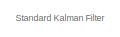
[diagram: root canvas - part 1/4, top left region]
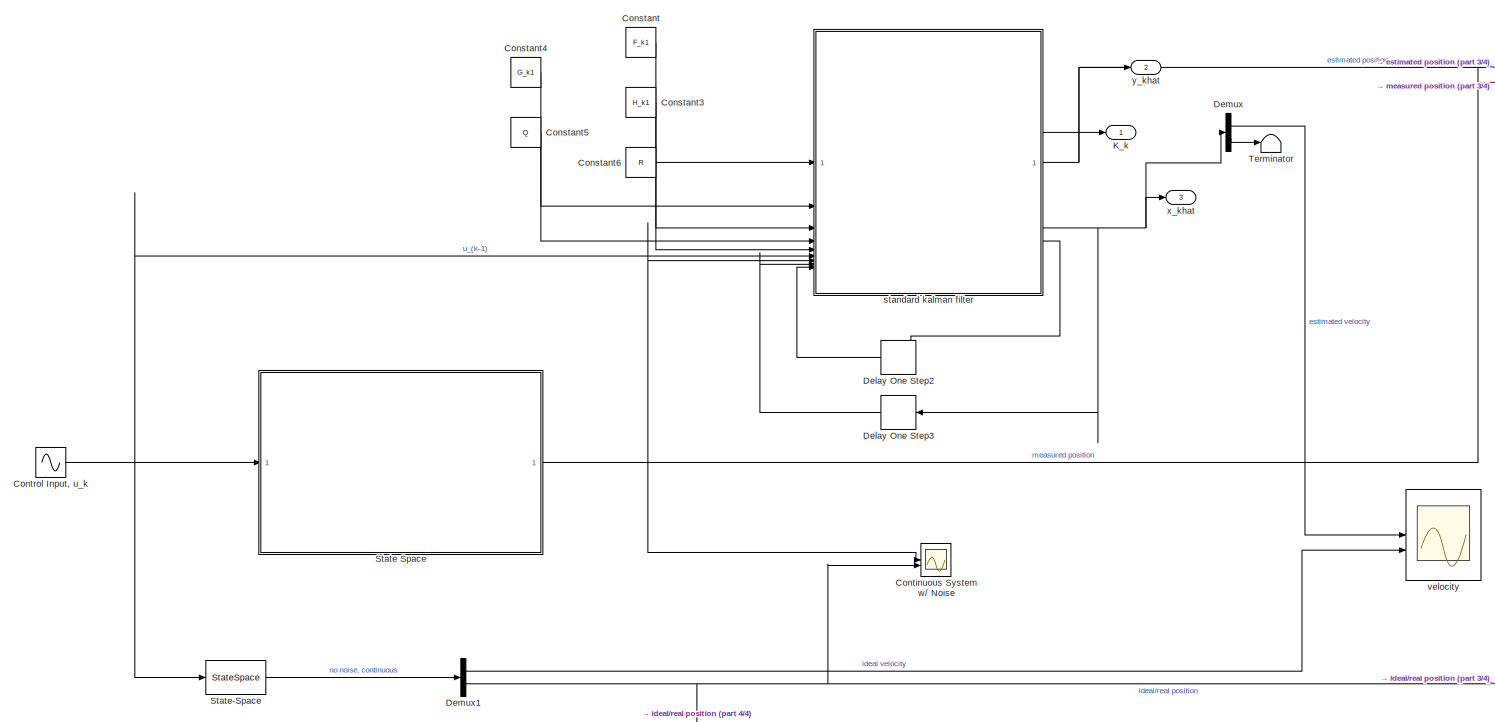
[diagram: root canvas - part 2/4, most of the canvas]
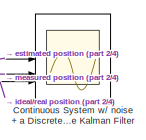
[diagram: root canvas - part 3/4, top right region]
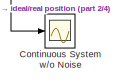
[diagram: root canvas - part 4/4, bottom center region]
MODEL slx_cb492cad4536
KIND model
CONFIG AbsTol = auto
CONFIG EnableMultiTasking = off
CONFIG FixedStep = auto
CONFIG MaxStep = auto
CONFIG MinStep = auto
CONFIG RelTol = 1e-3
CONFIG SampleTimeConstraint = Unconstrained
CONFIG SolverName = ode4
CONFIG StartTime = 0.0
CONFIG StopTime = 10
BLOCK [Constant] Constant
  Value = F_k1
  VectorParams1D = off
BLOCK [Constant] Constant3
  Value = H_k1
  VectorParams1D = off
BLOCK [Constant] Constant4
  Value = G_k1
  VectorParams1D = off
BLOCK [Constant] Constant5
  Value = Q
BLOCK [Constant] Constant6
  Value = R
BLOCK [Scope] Continuous System w// Noise
  Floating = off
  NumInputPorts = 2
  ScopeSpecificationString = Simulink.scopes.TimeScopeBlockCfg('CurrentConfiguration', extmgr.ConfigurationSet(extmgr.Configuration('Core','General UI',true),extmgr.Configuration('Core','Source UI',true),extmgr.Configuration('Sources','WiredSimulink',true,'DataLoggingVariableName','cont_noise','DataLogging',true,'SampleTime','0.01'),extmgr.Configuration('Visuals','Time Domain',true,'SerializedDisplays',{struct('MinYLimReal','...<+1532ch>
BLOCK [Scope] Continuous System w// noise + a Discrete Time Kalman Filter
  Floating = off
  NumInputPorts = 3
  ScopeSpecificationString = Simulink.scopes.TimeScopeBlockCfg('CurrentConfiguration', extmgr.ConfigurationSet(extmgr.Configuration('Core','General UI',true),extmgr.Configuration('Core','Source UI',true),extmgr.Configuration('Sources','WiredSimulink',true,'DataLoggingVariableName','cont_noise_KF','DataLogging',true,'SampleTime','0.1'),extmgr.Configuration('Visuals','Time Domain',true,'SerializedDisplays',{struct('MinYLimReal'...<+1645ch>
BLOCK [Scope] Continuous System w//o Noise
  Floating = off
  NumInputPorts = 1
  ScopeSpecificationString = Simulink.scopes.TimeScopeBlockCfg('CurrentConfiguration', extmgr.ConfigurationSet(extmgr.Configuration('Core','General UI',true),extmgr.Configuration('Core','Source UI',true),extmgr.Configuration('Sources','WiredSimulink',true,'DataLoggingVariableName','cont_nonoise','SampleTime','0.01','DataLogging',true),extmgr.Configuration('Visuals','Time Domain',true,'SerializedDisplays',{struct('MinYLimReal'...<+1516ch>
BLOCK [Sin] Control Input, u_k 
  SampleTime = 0.1
BLOCK [Delay] Delay One Step2
  DelayLength = 1
  InitialCondition = Pk0
  InputPortMap = u0
  SampleTime = 0.1
BLOCK [Delay] Delay One Step3
  DelayLength = 1
  InitialCondition = xhat0
  InputPortMap = u0
  SampleTime = 0.1
BLOCK [Demux] Demux
  Outputs = 2
BLOCK [Demux] Demux1
  Outputs = 2
BLOCK [Outport] K_k
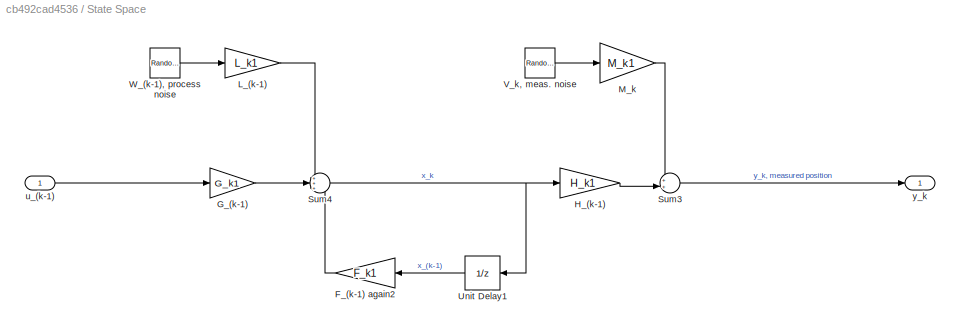
BLOCK [SubSystem] State Space
BLOCK [Gain] State Space/F_(k-1) again2
  Gain = F_k1
  Multiplication = Matrix(K*u)
BLOCK [Gain] State Space/G_(k-1)
  Gain = G_k1
  Multiplication = Matrix(K*u)
BLOCK [Gain] State Space/H_(k-1)
  Gain = H_k1
  Multiplication = Matrix(K*u)
BLOCK [Gain] State Space/L_(k-1)
  Gain = L_k1
  Multiplication = Matrix(K*u)
  SampleTime = 0.1
BLOCK [Gain] State Space/M_k
  Gain = M_k1
  Multiplication = Matrix(K*u)
  SampleTime = 0.1
BLOCK [Sum] State Space/Sum3
  Inputs = ++|
BLOCK [Sum] State Space/Sum4
  Inputs = +++
BLOCK [UnitDelay] State Space/Unit Delay1
  HasFrameUpgradeWarning = on
  InitialCondition = [0.5; -0.01]
  SampleTime = 0.1
BLOCK [RandomNumber] State Space/V_k, meas. noise
  SampleTime = 0.1
  Variance = 0.01
BLOCK [RandomNumber] State Space/W_(k-1), process noise
  SampleTime = 0.1
  Variance = 0.01
BLOCK [Inport] State Space/u_(k-1)
BLOCK [Outport] State Space/y_k
BLOCK [StateSpace] State-Space
  A = A
  B = B
  C = eye(2)
  D = [0; 0]
  InitialCondition = [x0 xdot0]
BLOCK [Terminator] Terminator
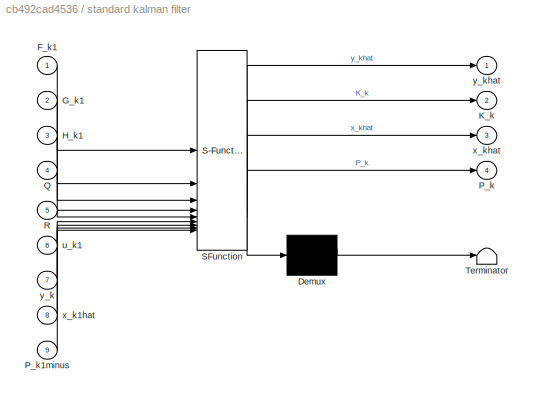
BLOCK [SubSystem] standard kalman filter
  ErrorFcn = Stateflow.Translate.translate
  PermitHierarchicalResolution = ExplicitOnly
  SFBlockType = MATLAB Function
  TreatAsAtomicUnit = on
BLOCK [Demux] standard kalman filter/ Demux 
  Outputs = 1
BLOCK [S-Function] standard kalman filter/ SFunction 
  EnableBusSupport = on
  FunctionName = sf_sfun
  PortCounts = [9 5]
  SFcnIsStateOwnerBlock = off
  SFunctionDeploymentMode = off
  Tag = Stateflow S-Function 3
BLOCK [Terminator] standard kalman filter/ Terminator 
BLOCK [Inport] standard kalman filter/F_k1
BLOCK [Inport] standard kalman filter/G_k1
  Port = 2
BLOCK [Inport] standard kalman filter/H_k1
  Port = 3
BLOCK [Outport] standard kalman filter/K_k
  Port = 2
BLOCK [Outport] standard kalman filter/P_k
  Port = 4
BLOCK [Inport] standard kalman filter/P_k1minus
  Port = 9
BLOCK [Inport] standard kalman filter/Q
  Port = 4
BLOCK [Inport] standard kalman filter/R
  Port = 5
BLOCK [Inport] standard kalman filter/u_k1
  Port = 6
BLOCK [Inport] standard kalman filter/x_k1hat
  Port = 8
BLOCK [Outport] standard kalman filter/x_khat
  Port = 3
BLOCK [Inport] standard kalman filter/y_k
  Port = 7
BLOCK [Outport] standard kalman filter/y_khat
BLOCK [Scope] velocity
  Floating = off
  NumInputPorts = 2
  ScopeSpecificationString = Simulink.scopes.TimeScopeBlockCfg('CurrentConfiguration', extmgr.ConfigurationSet(extmgr.Configuration('Core','General UI',true),extmgr.Configuration('Core','Source UI',true),extmgr.Configuration('Sources','WiredSimulink',true,'DataLoggingVariableName','ScopeData1','SampleTime','0.01'),extmgr.Configuration('Visuals','Time Domain',true,'SerializedDisplays',{struct('MinYLimReal','-1.21566','MaxYLimR...<+1582ch>
BLOCK [Outport] x_khat
  Port = 3
BLOCK [Outport] y_khat
  Port = 2
ANNOTATION (root): Standard Kalman Filter
LINE Constant3:1 -> standard kalman filter:3
LINE Constant4:1 -> standard kalman filter:2
LINE Constant5:1 -> standard kalman filter:4
LINE Constant6:1 -> standard kalman filter:5
LINE Constant:1 -> standard kalman filter:1
NET Control Input, u_k :1 -> State Space:1, State-Space:1, standard kalman filter:6
LINE Delay One Step2:1 -> standard kalman filter:9
LINE Delay One Step3:1 -> standard kalman filter:8
LINE Demux1:1 -> velocity:2
NET Demux1:2 -> Continuous System w// Noise:2, Continuous System w// noise + a Discrete Time Kalman Filter:3, Continuous System w//o Noise:1
LINE Demux:1 -> velocity:1
LINE Demux:2 -> Terminator:1
LINE State Space/F_(k-1) again2:1 -> State Space/Sum4:3
LINE State Space/G_(k-1):1 -> State Space/Sum4:2
LINE State Space/H_(k-1):1 -> State Space/Sum3:2
LINE State Space/L_(k-1):1 -> State Space/Sum4:1
LINE State Space/M_k:1 -> State Space/Sum3:1
LINE State Space/Sum3:1 -> State Space/y_k:1
NET State Space/Sum4:1 -> State Space/H_(k-1):1, State Space/Unit Delay1:1
LINE State Space/Unit Delay1:1 -> State Space/F_(k-1) again2:1
LINE State Space/V_k, meas. noise:1 -> State Space/M_k:1
LINE State Space/W_(k-1), process noise:1 -> State Space/L_(k-1):1
LINE State Space/u_(k-1):1 -> State Space/G_(k-1):1
NET State Space:1 -> Continuous System w// Noise:1, Continuous System w// noise + a Discrete Time Kalman Filter:2, standard kalman filter:7
LINE State-Space:1 -> Demux1:1
NET standard kalman filter:1 -> Continuous System w// noise + a Discrete Time Kalman Filter:1, y_khat:1
LINE standard kalman filter:2 -> K_k:1
NET standard kalman filter:3 -> Delay One Step3:1, Demux:1, x_khat:1
LINE standard kalman filter:4 -> Delay One Step2:1
note: NET lines group one-source signal fan-out (src -> all destinations, sorted); 1:1 wires keep LINE
CHART standard kalman filter states=1 transitions=1
  STATE_LABEL 'eML_blk_kernel()'
  STATE_LABEL "SCRIPT:\nfunction [y_khat, K_k, x_khat, P_k] = SKF(F_k1, G_k1, H_k1, Q, R,  u_k1, y_k, x_k1hat, P_k1minus)\n\n\n% prediction step\nx_kminushat = (F_k1 * x_k1hat) + (G_k1 * u_k1); % a priori state estimate\nP_kminus = (F_k1 * P_k1minus * transpose(F_k1)) + (G_k1 * Q * G_k1'); % a priori covariance\n\n% correction step\nW = (H_k1 * P_kminus * transpose(H_k1)) + (H_k1 * R * transpose(H_k1));\nK_k = P_kminus * ...<+420ch>"
CHART  states=0 transitions=0
